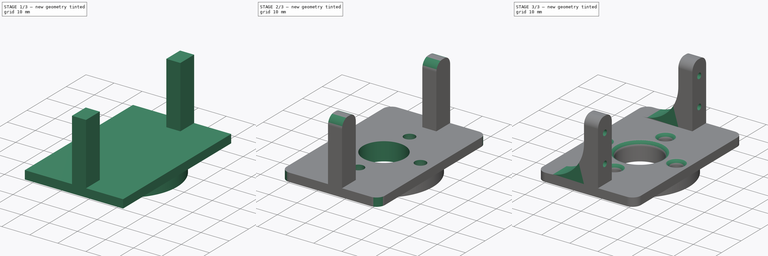
[diagram: build sequence overview — one tinted view per stage of 3, left to right]
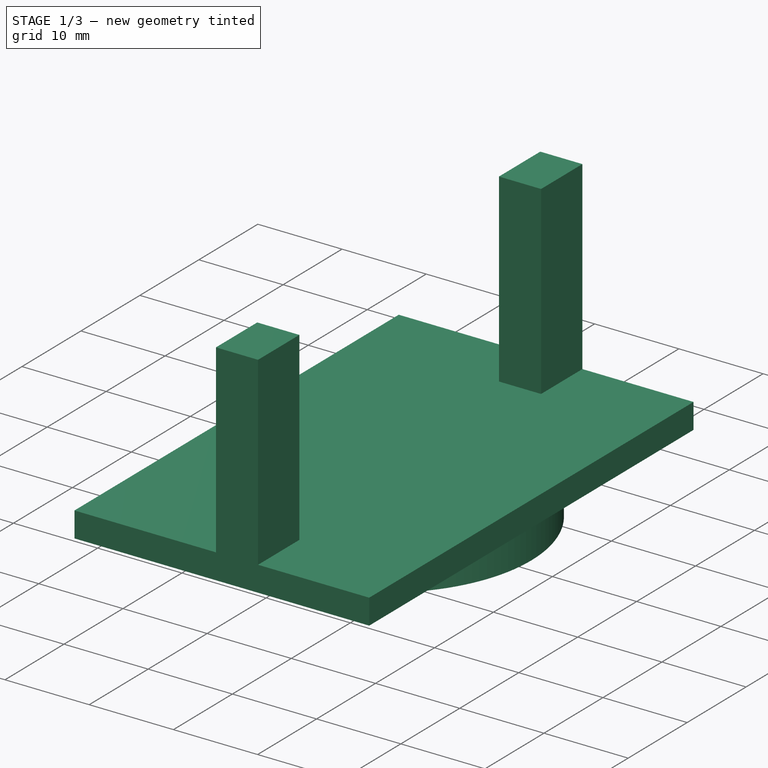
[diagram: stage 1 of 3 — iso view after this stage's code; geometry added in this stage tinted green]
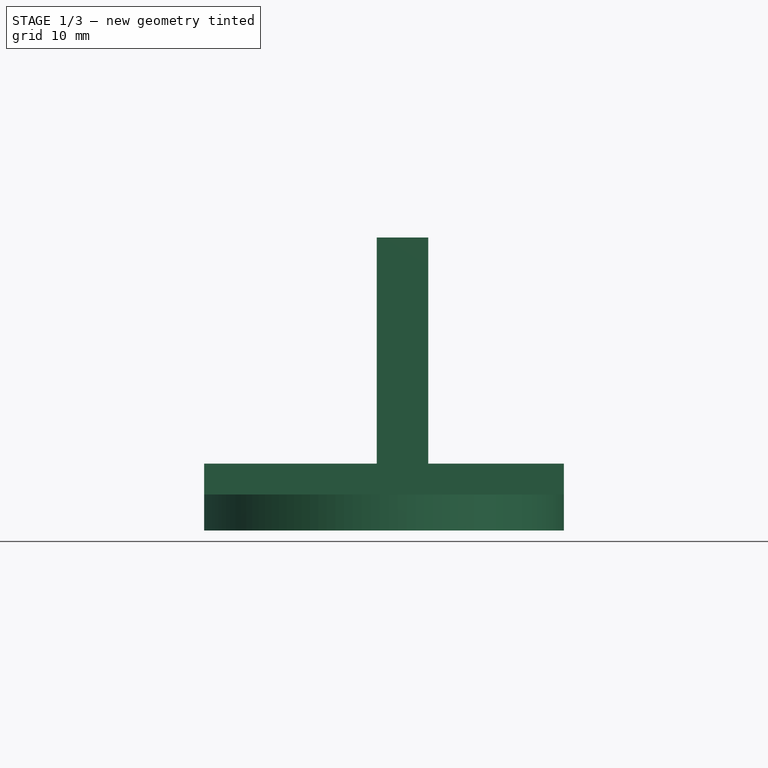
[diagram: stage 1 of 3 — front view after this stage's code; geometry added in this stage tinted green]
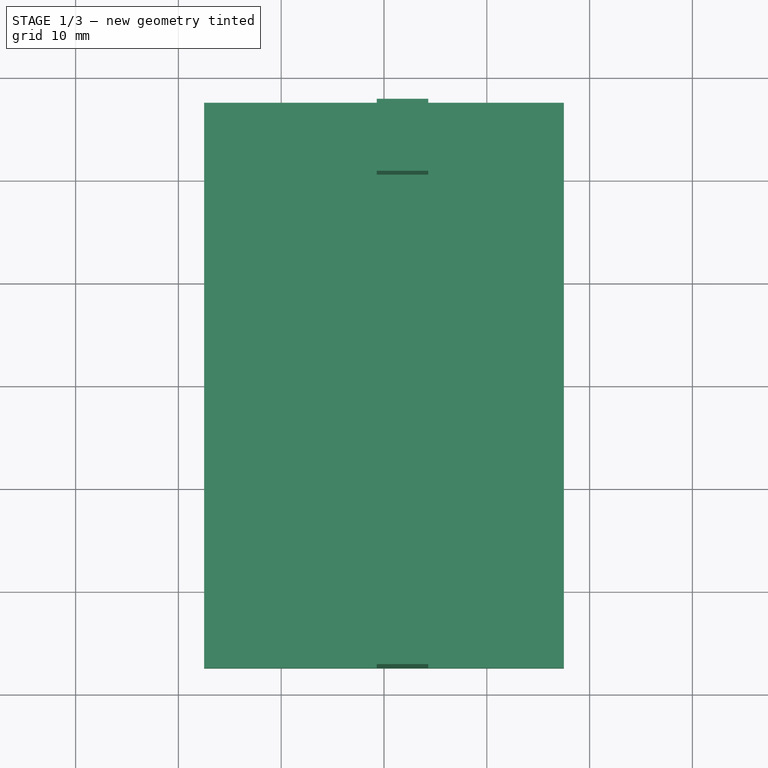
[diagram: stage 1 of 3 — top view after this stage's code; geometry added in this stage tinted green]
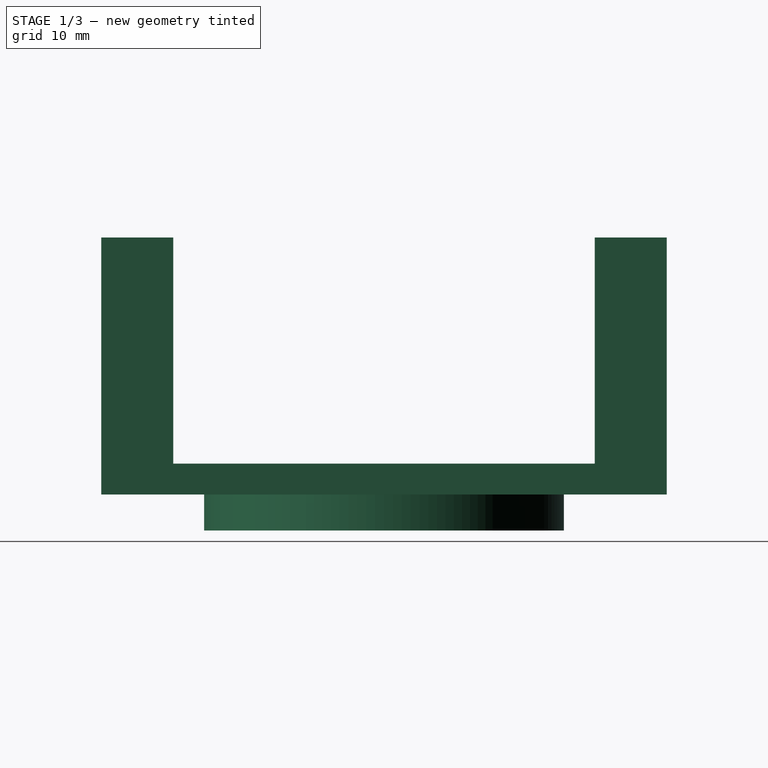
[diagram: stage 1 of 3 — right view after this stage's code; geometry added in this stage tinted green]
FCSTD DOCUMENT  (FreeCAD 0.18R16131 (Git))
Label: ServoMount
License: All rights reserved
LicenseURL: http://en.wikipedia.org/wiki/All_rights_reserved
objects: Sketcher::SketchObject×6, PartDesign::Pad×3, PartDesign::Fillet×3, PartDesign::Pocket×2, PartDesign::Body×1
note: 20 computed .brp shape members not serialized (recipe doc carries the construction recipe); baked Part::Feature solids carry a one-line shape summary decoded from their .brp

FEATURE [Sketcher::SketchObject] Sketch001
  AttachmentOffset = pos=(0,0,-0.7) rot=(0,0,1;0rad)
  MapMode = 5
  Placement = pos=(-0.7,2e-16,-2e-16) rot=(0.57735,0.57735,0.57735;2.0944rad)
  Support = -> [YZ_Plane]
  expr: AttachmentOffset.Base.z = -35 / 2 + 16.8
  sketch-geometry (15):
    g0: Circle [constr] CenterX=-24 CenterY=16.5 CenterZ=0 NormalX=0 NormalY=0 NormalZ=1 AngleXU=0 Radius=1
    g1: Circle [constr] CenterX=-24 CenterY=6.5 CenterZ=0 NormalX=0 NormalY=0 NormalZ=1 AngleXU=0 Radius=1
    g2: Circle [constr] CenterX=24 CenterY=16.5 CenterZ=0 NormalX=0 NormalY=0 NormalZ=1 AngleXU=0 Radius=1
    g3: Circle [constr] CenterX=24 CenterY=6.5 CenterZ=0 NormalX=0 NormalY=0 NormalZ=1 AngleXU=0 Radius=1
    g4: GeomPoint X=0 Y=6.5 Z=0
    g5: LineSegment StartX=-27.5 StartY=22 StartZ=0 EndX=-20.5 EndY=22 EndZ=0
    g6: LineSegment StartX=-20.5 StartY=22 StartZ=0 EndX=-20.5 EndY=0 EndZ=0
    g7: LineSegment StartX=-20.5 StartY=0 StartZ=0 EndX=-27.5 EndY=0 EndZ=0
    g8: LineSegment StartX=-27.5 StartY=0 StartZ=0 EndX=-27.5 EndY=22 EndZ=0
    g9: LineSegment StartX=20.5 StartY=22 StartZ=0 EndX=27.5 EndY=22 EndZ=0
    g10: LineSegment StartX=27.5 StartY=22 StartZ=0 EndX=27.5 EndY=0 EndZ=0
    g11: LineSegment StartX=27.5 StartY=0 StartZ=0 EndX=20.5 EndY=0 EndZ=0
    g12: LineSegment StartX=20.5 StartY=0 StartZ=0 EndX=20.5 EndY=22 EndZ=0
    g13: GeomPoint X=-24 Y=22 Z=0
    g14: GeomPoint X=24 Y=22 Z=0
  constraints (39):
    c: DistanceX(g3,g2) = 0
    c: DistanceX(g1,g0) = 0
    c: Distance(g0,g1) = 10
    c: Distance(g3,g2) = 10
    c: DistanceY(g1,g3) = 0
    c: DistanceX(g1,g3) = 48
    c: Symmetric(g1,g3,g4)
    c: DistanceX(g4,g-1) = 0
    c: Diameter(g0) = 2
    c: Diameter(g1) = 2
    c: Diameter(g2) = 2
    c: Diameter(g3) = 2
    c: Coincident(g5,g6)
    c: Coincident(g6,g7)
    c: Coincident(g7,g8)
    c: Coincident(g8,g5)
    c: Horizontal(g5)
    c: Horizontal(g7)
    c: Vertical(g6)
    c: Vertical(g8)
    c: Coincident(g9,g10)
    c: Coincident(g10,g11)
    c: Coincident(g11,g12)
    c: Coincident(g12,g9)
    c: Horizontal(g9)
    c: Horizontal(g11)
    c: Vertical(g10)
    c: Vertical(g12)
    c: DistanceY(g-1,g11) = 0
    c: DistanceY(g-1,g6) = 0
    c: Symmetric(g5,g5,g13)
    c: Symmetric(g9,g9,g14)
    c: DistanceX(g13,g0) = 0
    c: DistanceX(g14,g2) = 0
    c: DistanceY(g6,g6) = 22
    c: DistanceY(g10,g10) = 22
    c: DistanceX(g9,g9) = 7
    c: DistanceX(g5,g5) = 7
    c: DistanceY(g2,g14) = 5.5
FEATURE [Sketcher::SketchObject] Sketch
  AttachmentOffset = pos=(0,0,-3) rot=(0,0,1;0rad)
  ExternalGeometry = -> [Sketch001]
  MapMode = 5
  Placement = pos=(0,0,-3) rot=(0,0,1;0rad)
  Support = -> [XY_Plane]
  expr: Constraints[20] = 4 - 0.2
  expr: Constraints[19] = 4 - 0.2
  expr: Constraints[18] = 4 - 0.2
  expr: Constraints[17] = 4 - 0.2
  sketch-geometry (11):
    g0: LineSegment [constr] StartX=17.5 StartY=27.5 StartZ=0 EndX=-17.5 EndY=27.5 EndZ=0
    g1: LineSegment [constr] StartX=-17.5 StartY=27.5 StartZ=0 EndX=-17.5 EndY=-27.5 EndZ=0
    g2: LineSegment [constr] StartX=-17.5 StartY=-27.5 StartZ=0 EndX=17.5 EndY=-27.5 EndZ=0
    g3: LineSegment [constr] StartX=17.5 StartY=-27.5 StartZ=0 EndX=17.5 EndY=27.5 EndZ=0
    g4: Circle CenterX=0 CenterY=0 CenterZ=0 NormalX=0 NormalY=0 NormalZ=1 AngleXU=0 Radius=17.5
    g5: Circle CenterX=0 CenterY=0 CenterZ=0 NormalX=0 NormalY=0 NormalZ=1 AngleXU=0 Radius=7.35
    g6: Circle CenterX=-13 CenterY=0 CenterZ=0 NormalX=0 NormalY=0 NormalZ=1 AngleXU=0 Radius=1.9
    g7: Circle CenterX=0 CenterY=13 CenterZ=0 NormalX=0 NormalY=0 NormalZ=1 AngleXU=0 Radius=1.9
    g8: Circle CenterX=13 CenterY=0 CenterZ=0 NormalX=0 NormalY=0 NormalZ=1 AngleXU=0 Radius=1.9
    g9: Circle CenterX=0 CenterY=-13 CenterZ=0 NormalX=0 NormalY=0 NormalZ=1 AngleXU=0 Radius=1.9
    g10: GeomPoint X=-6e-16 Y=27.5 Z=0
  constraints (25):
    c: Coincident(g0,g1)
    c: Coincident(g1,g2)
    c: Coincident(g2,g3)
    c: Coincident(g3,g0)
    c: Horizontal(g0)
    c: Horizontal(g2)
    c: Vertical(g1)
    c: Vertical(g3)
    c: Symmetric(g1,g0,g-1)
    c: Coincident(g4,g-1)
    c: Coincident(g5,g4)
    c: Diameter(g4) = 35
    c: Diameter(g5) = 14.7
    c: Symmetric(g9,g7,g4)
    c: Symmetric(g8,g6,g4)
    c: DistanceX(g7,g4) = 0
    c: DistanceY(g4,g8) = 0
    c: Diameter(g7) = 3.8
    c: Diameter(g8) = 3.8
    c: Diameter(g6) = 3.8
    c: Diameter(g9) = 3.8
    c: Distance(g7,g9) = 26
    c: Distance(g8,g6) = 26
    c: Symmetric(g0,g0,g10)
    c: DistanceX(g0,g0) = 35
FEATURE [Sketcher::SketchObject] Sketch002
  ExternalGeometry = -> [Sketch001]
  MapMode = 5
  Support = -> [XY_Plane]
  expr: Constraints[20] = 4 - 0.2
  expr: Constraints[19] = 4 - 0.2
  expr: Constraints[18] = 4 - 0.2
  expr: Constraints[17] = 4 - 0.2
  sketch-geometry (11):
    g0: LineSegment StartX=17.5 StartY=27.5 StartZ=0 EndX=-17.5 EndY=27.5 EndZ=0
    g1: LineSegment StartX=-17.5 StartY=27.5 StartZ=0 EndX=-17.5 EndY=-27.5 EndZ=0
    g2: LineSegment StartX=-17.5 StartY=-27.5 StartZ=0 EndX=17.5 EndY=-27.5 EndZ=0
    g3: LineSegment StartX=17.5 StartY=-27.5 StartZ=0 EndX=17.5 EndY=27.5 EndZ=0
    g4: Circle [constr] CenterX=0 CenterY=0 CenterZ=0 NormalX=0 NormalY=0 NormalZ=1 AngleXU=0 Radius=17.5
    g5: Circle [constr] CenterX=0 CenterY=0 CenterZ=0 NormalX=0 NormalY=0 NormalZ=1 AngleXU=0 Radius=7.35
    g6: Circle [constr] CenterX=-13 CenterY=0 CenterZ=0 NormalX=0 NormalY=0 NormalZ=1 AngleXU=0 Radius=1.9
    g7: Circle [constr] CenterX=0 CenterY=13 CenterZ=0 NormalX=0 NormalY=0 NormalZ=1 AngleXU=0 Radius=1.9
    g8: Circle [constr] CenterX=13 CenterY=0 CenterZ=0 NormalX=0 NormalY=0 NormalZ=1 AngleXU=0 Radius=1.9
    g9: Circle [constr] CenterX=0 CenterY=-13 CenterZ=0 NormalX=0 NormalY=0 NormalZ=1 AngleXU=0 Radius=1.9
    g10: GeomPoint X=-6e-16 Y=27.5 Z=0
  constraints (25):
    c: Coincident(g0,g1)
    c: Coincident(g1,g2)
    c: Coincident(g2,g3)
    c: Coincident(g3,g0)
    c: Horizontal(g0)
    c: Horizontal(g2)
    c: Vertical(g1)
    c: Vertical(g3)
    c: Symmetric(g1,g0,g-1)
    c: Coincident(g4,g-1)
    c: Coincident(g5,g4)
    c: Diameter(g4) = 35
    c: Diameter(g5) = 14.7
    c: Symmetric(g9,g7,g4)
    c: Symmetric(g8,g6,g4)
    c: DistanceX(g7,g4) = 0
    c: DistanceY(g4,g8) = 0
    c: Diameter(g7) = 3.8
    c: Diameter(g8) = 3.8
    c: Diameter(g6) = 3.8
    c: Diameter(g9) = 3.8
    c: Distance(g7,g9) = 26
    c: Distance(g8,g6) = 26
    c: Symmetric(g0,g0,g10)
    c: DistanceX(g0,g0) = 35
FEATURE [PartDesign::Pad] Pad
  Length = 3
  Length2 = 100
  Profile = -> Sketch002
  Reversed = true
  Type = 0
FEATURE [PartDesign::Pad] Pad001
  BaseFeature = -> Pad
  Length = 5
  Length2 = 100
  Profile = -> Sketch001
  Type = 0
FEATURE [PartDesign::Pad] Pad002
  BaseFeature = -> Pad001
  Length = 3.5
  Length2 = 100
  Profile = -> Sketch
  Reversed = true
  Type = 0
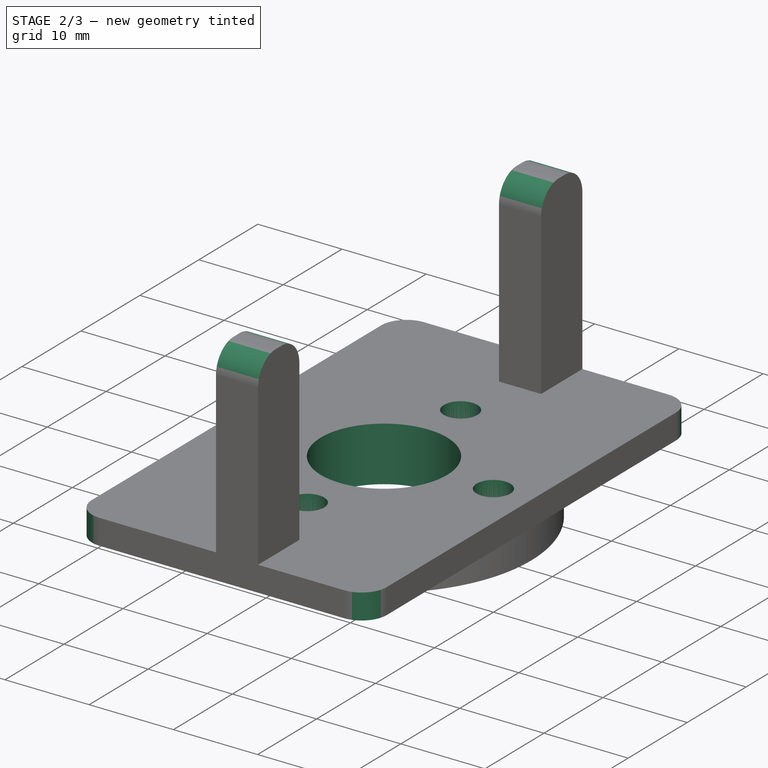
[diagram: stage 2 of 3 — iso view after this stage's code; geometry added in this stage tinted green]
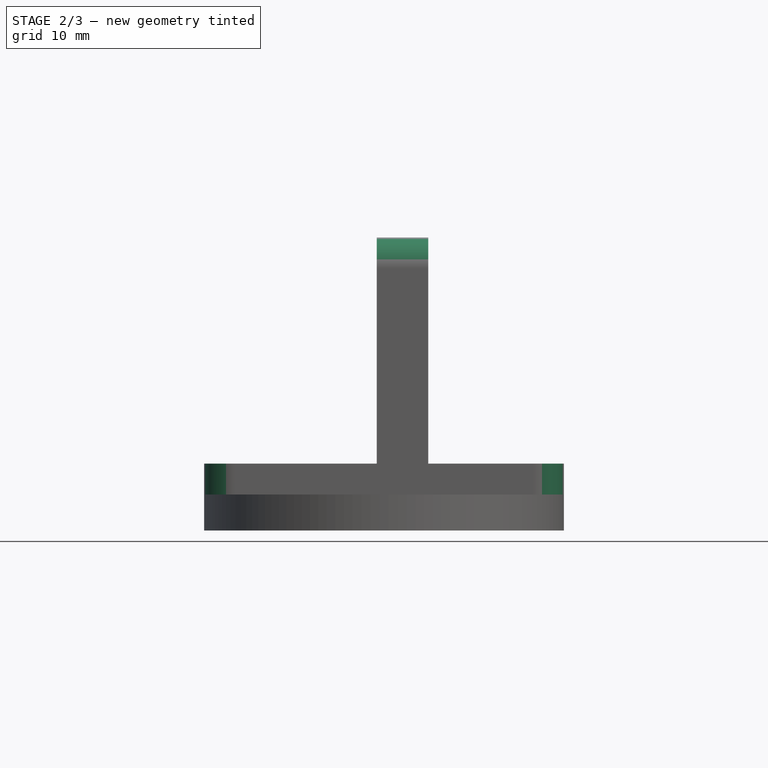
[diagram: stage 2 of 3 — front view after this stage's code; geometry added in this stage tinted green]
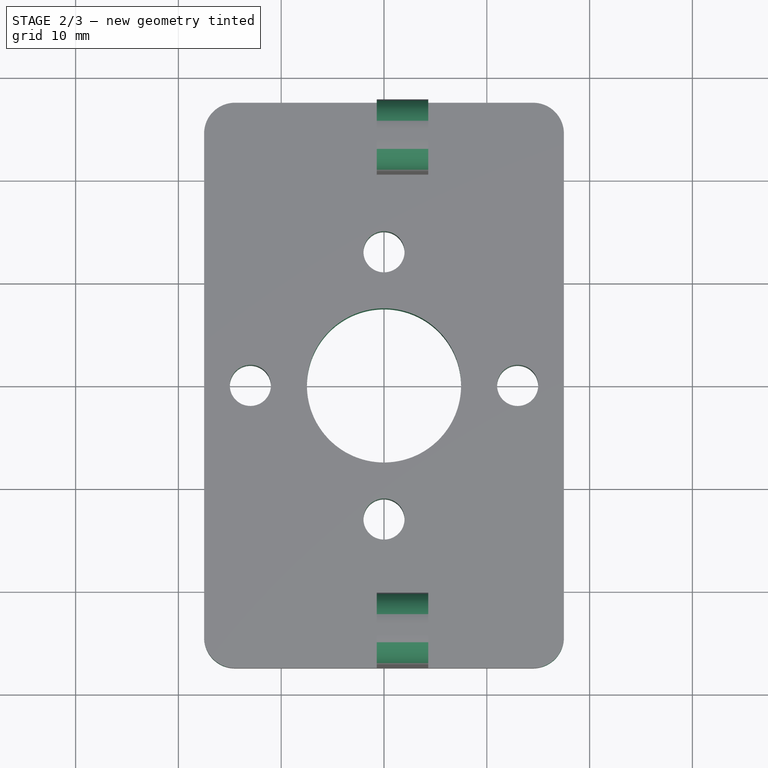
[diagram: stage 2 of 3 — top view after this stage's code; geometry added in this stage tinted green]
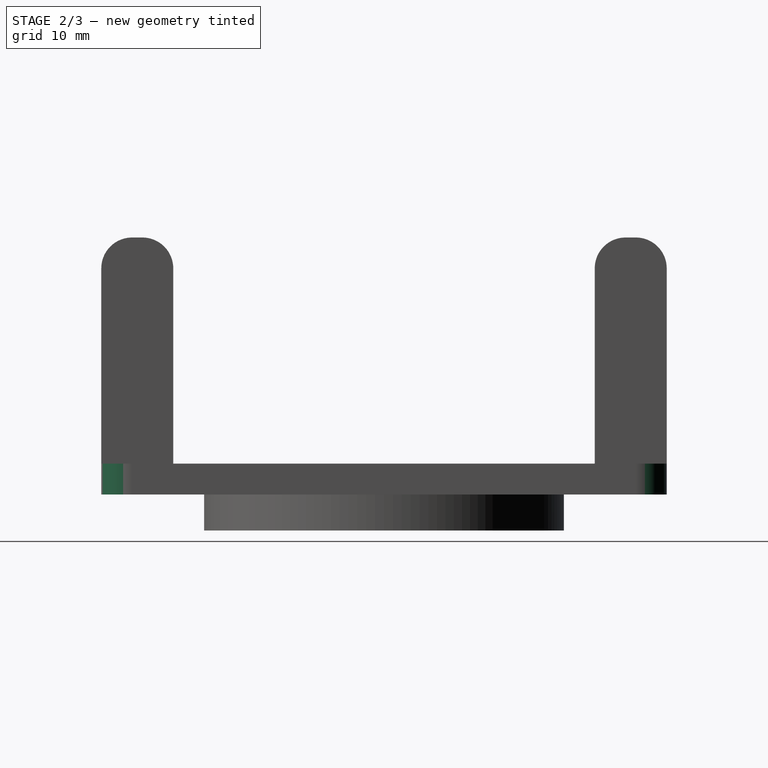
[diagram: stage 2 of 3 — right view after this stage's code; geometry added in this stage tinted green]
FEATURE [Sketcher::SketchObject] Sketch003
  AttachmentOffset = pos=(0,0,-20) rot=(0,0,1;0rad)
  ExternalGeometry = -> [Sketch001]
  MapMode = 5
  Placement = pos=(0,0,-20) rot=(0,0,1;0rad)
  Support = -> [XY_Plane]
  expr: Constraints[20] = 4
  expr: Constraints[19] = 4
  expr: Constraints[18] = 4
  expr: Constraints[17] = 4
  sketch-geometry (11):
    g0: LineSegment [constr] StartX=17.5 StartY=27.5 StartZ=0 EndX=-17.5 EndY=27.5 EndZ=0
    g1: LineSegment [constr] StartX=-17.5 StartY=27.5 StartZ=0 EndX=-17.5 EndY=-27.5 EndZ=0
    g2: LineSegment [constr] StartX=-17.5 StartY=-27.5 StartZ=0 EndX=17.5 EndY=-27.5 EndZ=0
    g3: LineSegment [constr] StartX=17.5 StartY=-27.5 StartZ=0 EndX=17.5 EndY=27.5 EndZ=0
    g4: Circle [constr] CenterX=0 CenterY=0 CenterZ=0 NormalX=0 NormalY=0 NormalZ=1 AngleXU=0 Radius=17.5
    g5: Circle CenterX=0 CenterY=0 CenterZ=0 NormalX=0 NormalY=0 NormalZ=1 AngleXU=0 Radius=7.5
    g6: Circle CenterX=-13 CenterY=0 CenterZ=0 NormalX=0 NormalY=0 NormalZ=1 AngleXU=0 Radius=2
    g7: Circle CenterX=0 CenterY=13 CenterZ=0 NormalX=0 NormalY=0 NormalZ=1 AngleXU=0 Radius=2
    g8: Circle CenterX=13 CenterY=0 CenterZ=0 NormalX=0 NormalY=0 NormalZ=1 AngleXU=0 Radius=2
    g9: Circle CenterX=0 CenterY=-13 CenterZ=0 NormalX=0 NormalY=0 NormalZ=1 AngleXU=0 Radius=2
    g10: GeomPoint X=-6e-16 Y=27.5 Z=0
  constraints (25):
    c: Coincident(g0,g1)
    c: Coincident(g1,g2)
    c: Coincident(g2,g3)
    c: Coincident(g3,g0)
    c: Horizontal(g0)
    c: Horizontal(g2)
    c: Vertical(g1)
    c: Vertical(g3)
    c: Symmetric(g1,g0,g-1)
    c: Coincident(g4,g-1)
    c: Coincident(g5,g4)
    c: Diameter(g4) = 35
    c: Diameter(g5) = 15
    c: Symmetric(g9,g7,g4)
    c: Symmetric(g8,g6,g4)
    c: DistanceX(g7,g4) = 0
    c: DistanceY(g4,g8) = 0
    c: Diameter(g7) = 4
    c: Diameter(g8) = 4
    c: Diameter(g6) = 4
    c: Diameter(g9) = 4
    c: Distance(g7,g9) = 26
    c: Distance(g8,g6) = 26
    c: Symmetric(g0,g0,g10)
    c: DistanceX(g0,g0) = 35
FEATURE [PartDesign::Pocket] Pocket
  BaseFeature = -> Pad002
  Length = 5
  Length2 = 100
  Profile = -> Sketch003
  Reversed = true
  Type = 1
FEATURE [PartDesign::Fillet] Fillet
  Base = -> Pocket [Edge28,Edge42,Edge40,Edge59,Edge11,Edge2,Edge1,Edge7]
  BaseFeature = -> Pocket
  Radius = 3
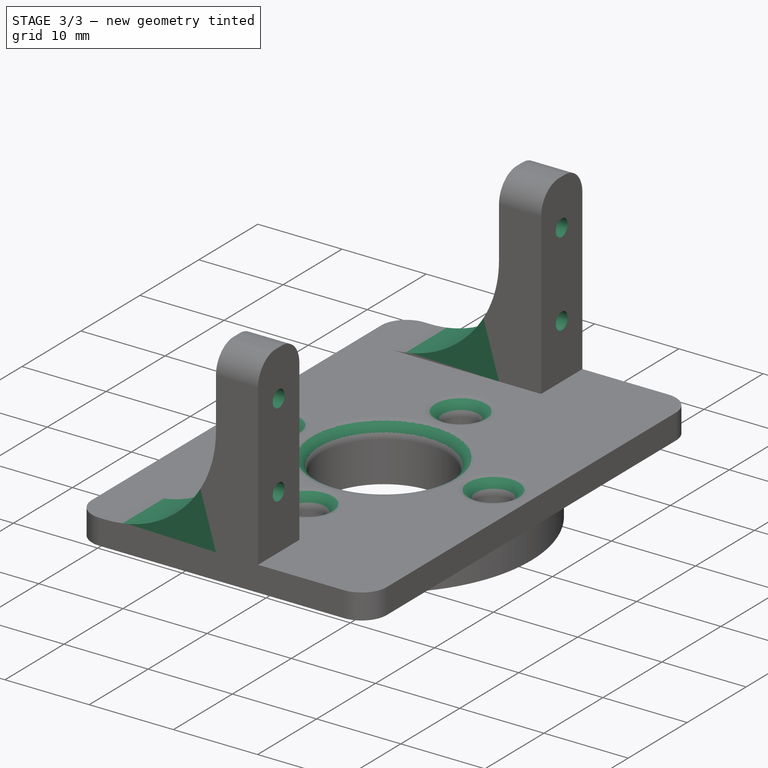
[diagram: stage 3 of 3 — iso view after this stage's code; geometry added in this stage tinted green]
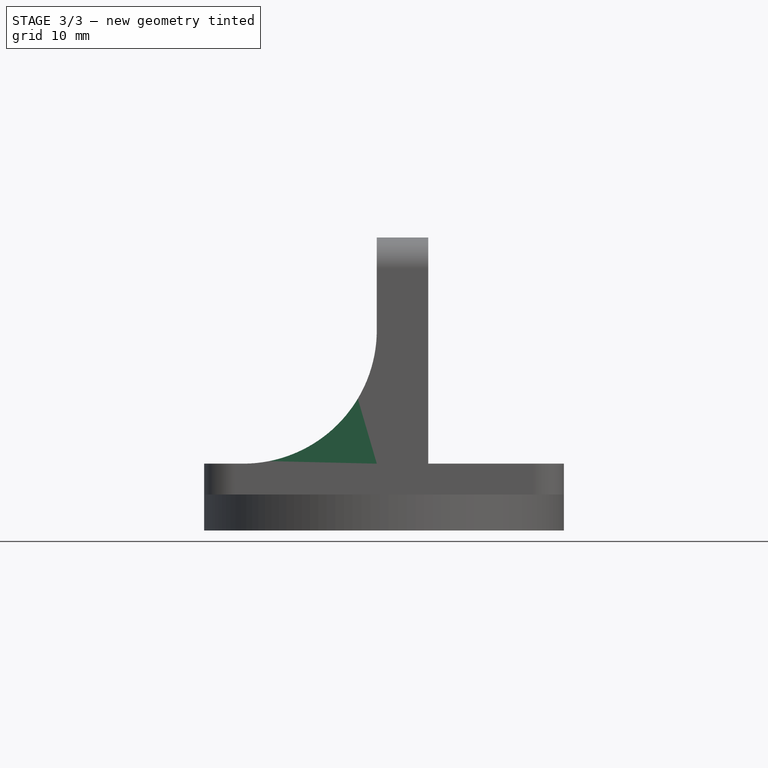
[diagram: stage 3 of 3 — front view after this stage's code; geometry added in this stage tinted green]
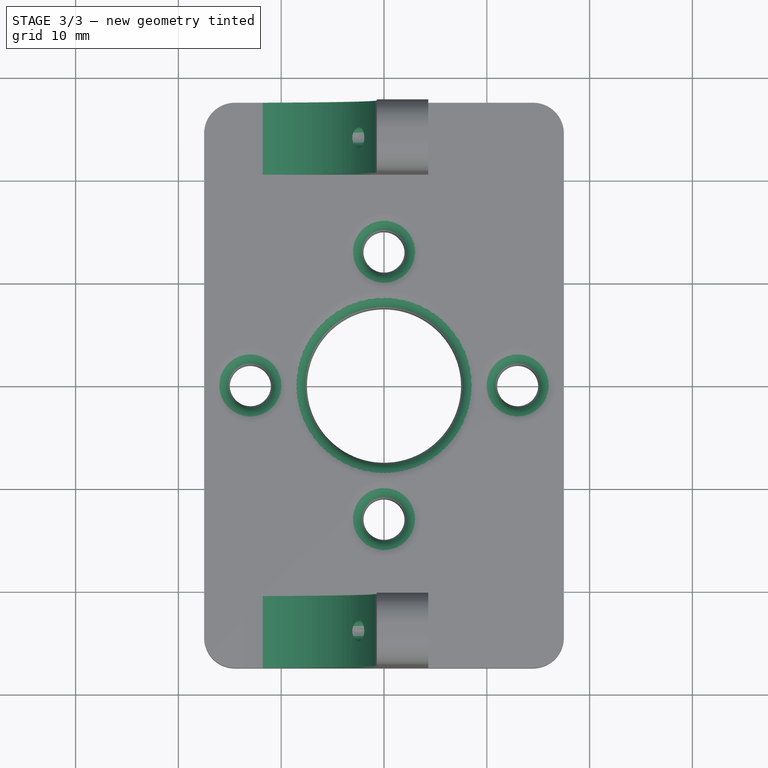
[diagram: stage 3 of 3 — top view after this stage's code; geometry added in this stage tinted green]
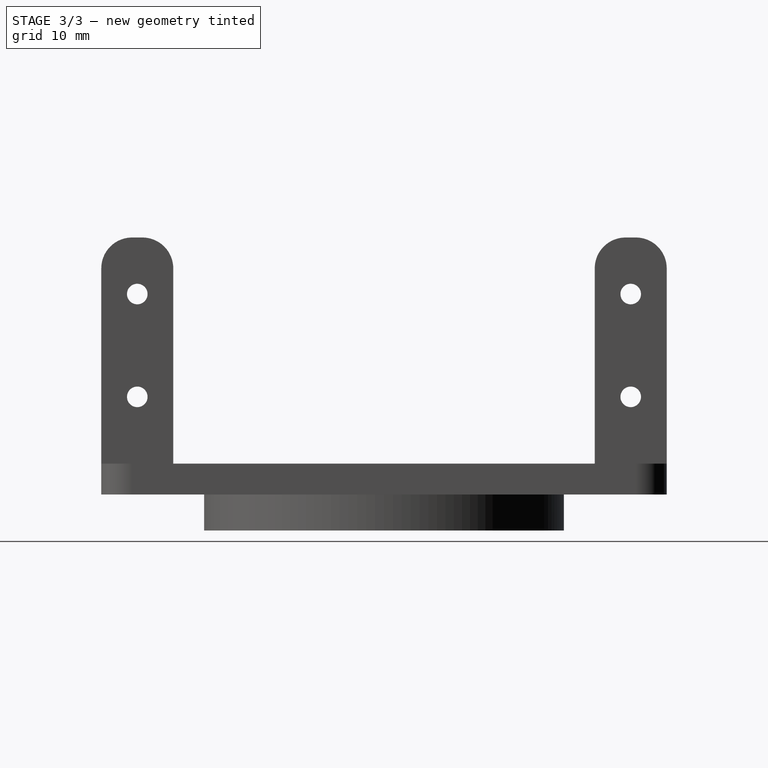
[diagram: stage 3 of 3 — right view after this stage's code; geometry added in this stage tinted green]
FEATURE [PartDesign::Fillet] Fillet001
  Base = -> Fillet [Edge16,Edge15]
  BaseFeature = -> Fillet
  Radius = 13
FEATURE [PartDesign::Fillet] Fillet002
  Base = -> Fillet001 [Edge24,Edge25,Edge26,Edge28,Edge27]
  BaseFeature = -> Fillet001
  Radius = 1.7
FEATURE [Sketcher::SketchObject] Sketch004
  AttachmentOffset = pos=(0,0,50) rot=(0,0,1;0rad)
  MapMode = 5
  Placement = pos=(50,-1.11e-14,1.11e-14) rot=(0.57735,0.57735,0.57735;2.0944rad)
  Support = -> [YZ_Plane]
  sketch-geometry (15):
    g0: Circle CenterX=-24 CenterY=16.5 CenterZ=0 NormalX=0 NormalY=0 NormalZ=1 AngleXU=0 Radius=1
    g1: Circle CenterX=-24 CenterY=6.5 CenterZ=0 NormalX=0 NormalY=0 NormalZ=1 AngleXU=0 Radius=1
    g2: Circle CenterX=24 CenterY=16.5 CenterZ=0 NormalX=0 NormalY=0 NormalZ=1 AngleXU=0 Radius=1
    g3: Circle CenterX=24 CenterY=6.5 CenterZ=0 NormalX=0 NormalY=0 NormalZ=1 AngleXU=0 Radius=1
    g4: GeomPoint X=0 Y=6.5 Z=0
    g5: LineSegment [constr] StartX=-27.5 StartY=22 StartZ=0 EndX=-20.5 EndY=22 EndZ=0
    g6: LineSegment [constr] StartX=-20.5 StartY=22 StartZ=0 EndX=-20.5 EndY=0 EndZ=0
    g7: LineSegment [constr] StartX=-20.5 StartY=0 StartZ=0 EndX=-27.5 EndY=0 EndZ=0
    g8: LineSegment [constr] StartX=-27.5 StartY=0 StartZ=0 EndX=-27.5 EndY=22 EndZ=0
    g9: LineSegment [constr] StartX=20.5 StartY=22 StartZ=0 EndX=27.5 EndY=22 EndZ=0
    g10: LineSegment [constr] StartX=27.5 StartY=22 StartZ=0 EndX=27.5 EndY=0 EndZ=0
    g11: LineSegment [constr] StartX=27.5 StartY=0 StartZ=0 EndX=20.5 EndY=0 EndZ=0
    g12: LineSegment [constr] StartX=20.5 StartY=0 StartZ=0 EndX=20.5 EndY=22 EndZ=0
    g13: GeomPoint X=-24 Y=22 Z=0
    g14: GeomPoint X=24 Y=22 Z=0
  constraints (39):
    c: DistanceX(g3,g2) = 0
    c: DistanceX(g1,g0) = 0
    c: Distance(g0,g1) = 10
    c: Distance(g3,g2) = 10
    c: DistanceY(g1,g3) = 0
    c: DistanceX(g1,g3) = 48
    c: Symmetric(g1,g3,g4)
    c: DistanceX(g4,g-1) = 0
    c: Diameter(g0) = 2
    c: Diameter(g1) = 2
    c: Diameter(g2) = 2
    c: Diameter(g3) = 2
    c: Coincident(g5,g6)
    c: Coincident(g6,g7)
    c: Coincident(g7,g8)
    c: Coincident(g8,g5)
    c: Horizontal(g5)
    c: Horizontal(g7)
    c: Vertical(g6)
    c: Vertical(g8)
    c: Coincident(g9,g10)
    c: Coincident(g10,g11)
    c: Coincident(g11,g12)
    c: Coincident(g12,g9)
    c: Horizontal(g9)
    c: Horizontal(g11)
    c: Vertical(g10)
    c: Vertical(g12)
    c: DistanceY(g-1,g11) = 0
    c: DistanceY(g-1,g6) = 0
    c: Symmetric(g5,g5,g13)
    c: Symmetric(g9,g9,g14)
    c: DistanceX(g13,g0) = 0
    c: DistanceX(g14,g2) = 0
    c: DistanceY(g6,g6) = 22
    c: DistanceY(g10,g10) = 22
    c: DistanceX(g9,g9) = 7
    c: DistanceX(g5,g5) = 7
    c: DistanceY(g2,g14) = 5.5
FEATURE [PartDesign::Pocket] Pocket001
  BaseFeature = -> Fillet002
  Length = 50
  Length2 = 100
  Midplane = true
  Profile = -> Sketch004
  Type = 1
FEATURE [Sketcher::SketchObject] Sketch005
  AttachmentOffset = pos=(0,0,-0.7) rot=(0,0,1;0rad)
  MapMode = 5
  Placement = pos=(-0.7,2e-16,-2e-16) rot=(0.57735,0.57735,0.57735;2.0944rad)
  Support = -> [YZ_Plane]
  expr: AttachmentOffset.Base.z = -35 / 2 + 16.8
  sketch-geometry (15):
    g0: Circle CenterX=-24 CenterY=16.5 CenterZ=0 NormalX=0 NormalY=0 NormalZ=1 AngleXU=0 Radius=1
    g1: Circle CenterX=-24 CenterY=6.5 CenterZ=0 NormalX=0 NormalY=0 NormalZ=1 AngleXU=0 Radius=1
    g2: Circle CenterX=24 CenterY=16.5 CenterZ=0 NormalX=0 NormalY=0 NormalZ=1 AngleXU=0 Radius=1
    g3: Circle CenterX=24 CenterY=6.5 CenterZ=0 NormalX=0 NormalY=0 NormalZ=1 AngleXU=0 Radius=1
    g4: GeomPoint X=0 Y=6.5 Z=0
    g5: LineSegment [constr] StartX=-27.5 StartY=22 StartZ=0 EndX=-20.5 EndY=22 EndZ=0
    g6: LineSegment [constr] StartX=-20.5 StartY=22 StartZ=0 EndX=-20.5 EndY=0 EndZ=0
    g7: LineSegment [constr] StartX=-20.5 StartY=0 StartZ=0 EndX=-27.5 EndY=0 EndZ=0
    g8: LineSegment [constr] StartX=-27.5 StartY=0 StartZ=0 EndX=-27.5 EndY=22 EndZ=0
    g9: LineSegment [constr] StartX=20.5 StartY=22 StartZ=0 EndX=27.5 EndY=22 EndZ=0
    g10: LineSegment [constr] StartX=27.5 StartY=22 StartZ=0 EndX=27.5 EndY=0 EndZ=0
    g11: LineSegment [constr] StartX=27.5 StartY=0 StartZ=0 EndX=20.5 EndY=0 EndZ=0
    g12: LineSegment [constr] StartX=20.5 StartY=0 StartZ=0 EndX=20.5 EndY=22 EndZ=0
    g13: GeomPoint X=-24 Y=22 Z=0
    g14: GeomPoint X=24 Y=22 Z=0
  constraints (39):
    c: DistanceX(g3,g2) = 0
    c: DistanceX(g1,g0) = 0
    c: Distance(g0,g1) = 10
    c: Distance(g3,g2) = 10
    c: DistanceY(g1,g3) = 0
    c: DistanceX(g1,g3) = 48
    c: Symmetric(g1,g3,g4)
    c: DistanceX(g4,g-1) = 0
    c: Diameter(g0) = 2
    c: Diameter(g1) = 2
    c: Diameter(g2) = 2
    c: Diameter(g3) = 2
    c: Coincident(g5,g6)
    c: Coincident(g6,g7)
    c: Coincident(g7,g8)
    c: Coincident(g8,g5)
    c: Horizontal(g5)
    c: Horizontal(g7)
    c: Vertical(g6)
    c: Vertical(g8)
    c: Coincident(g9,g10)
    c: Coincident(g10,g11)
    c: Coincident(g11,g12)
    c: Coincident(g12,g9)
    c: Horizontal(g9)
    c: Horizontal(g11)
    c: Vertical(g10)
    c: Vertical(g12)
    c: DistanceY(g-1,g11) = 0
    c: DistanceY(g-1,g6) = 0
    c: Symmetric(g5,g5,g13)
    c: Symmetric(g9,g9,g14)
    c: DistanceX(g13,g0) = 0
    c: DistanceX(g14,g2) = 0
    c: DistanceY(g6,g6) = 22
    c: DistanceY(g10,g10) = 22
    c: DistanceX(g9,g9) = 7
    c: DistanceX(g5,g5) = 7
    c: DistanceY(g2,g14) = 5.5
FEATURE [PartDesign::Body] Body
  Group = -> [Sketch001,Sketch002,Pad,Pad001,Sketch,Pad002,Sketch003,Pocket,Fillet,Fillet001,Fillet002,Sketch004,Pocket001,Sketch005]
  Origin = -> Origin
  Tip = -> Pocket001
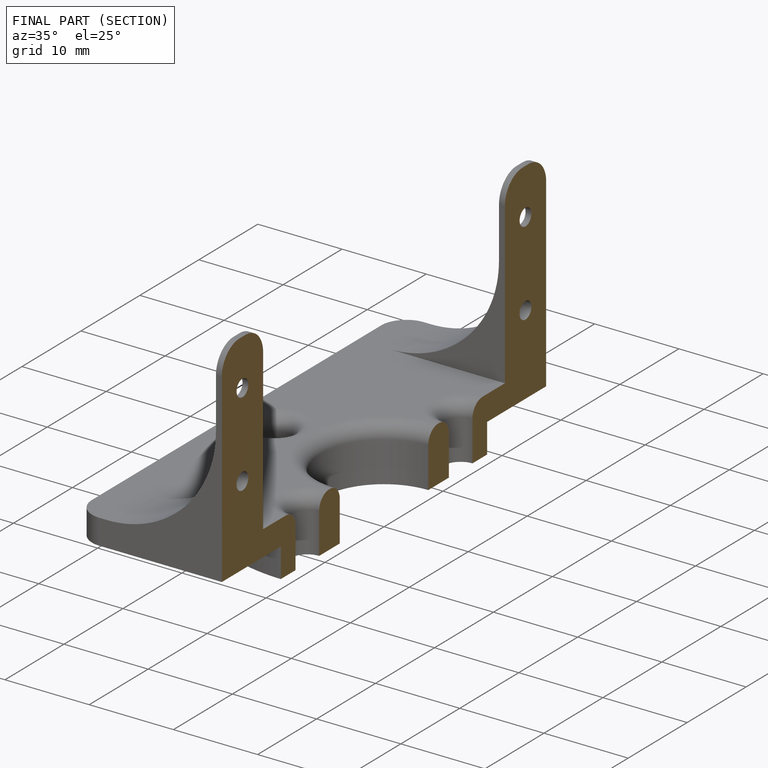
[diagram: finished part — half-section view (interior)]
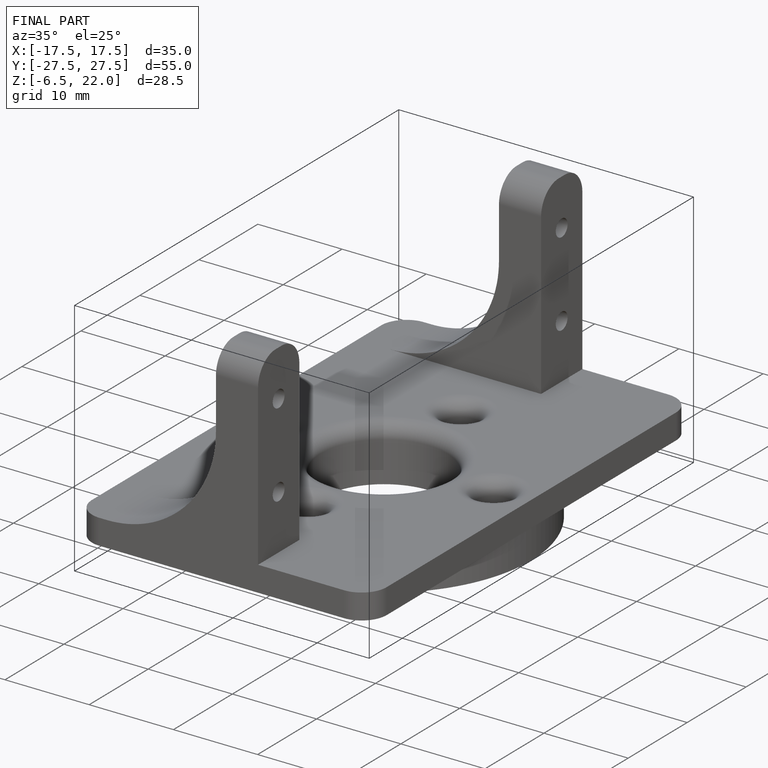
[diagram: finished part — iso view with bounding-box wireframe]
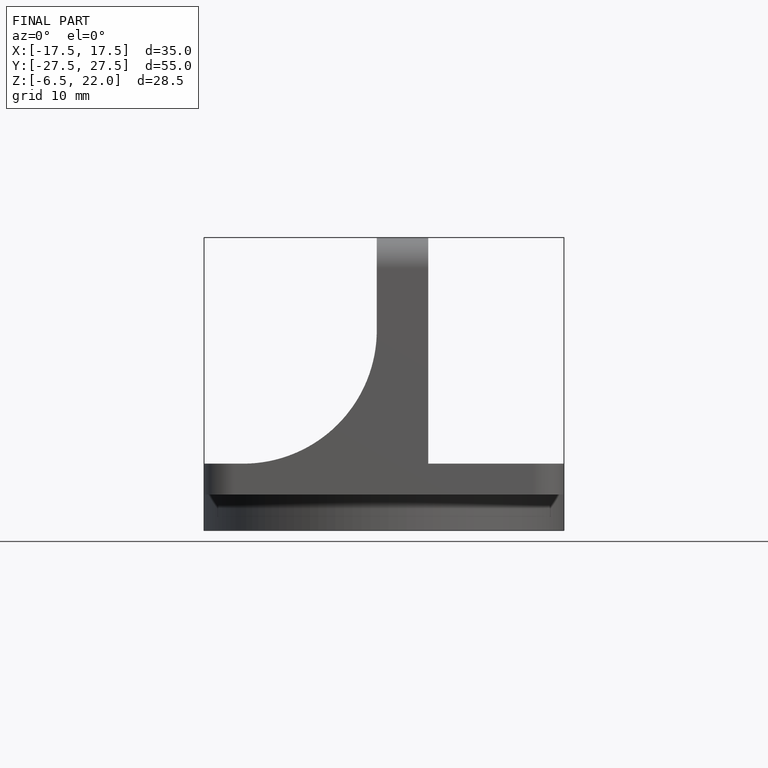
[diagram: finished part — front view with bounding-box wireframe]
